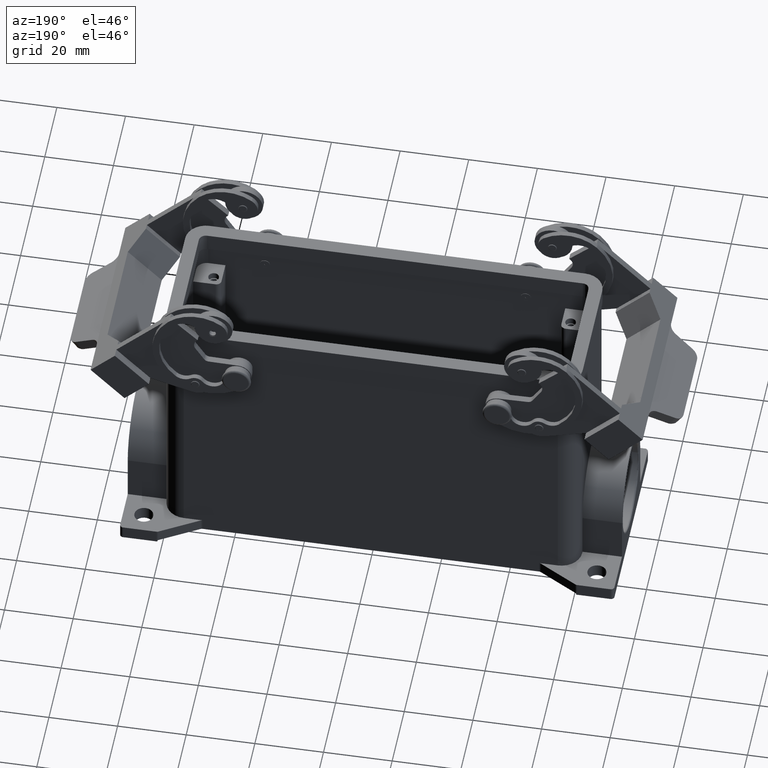
[diagram: clean part render]
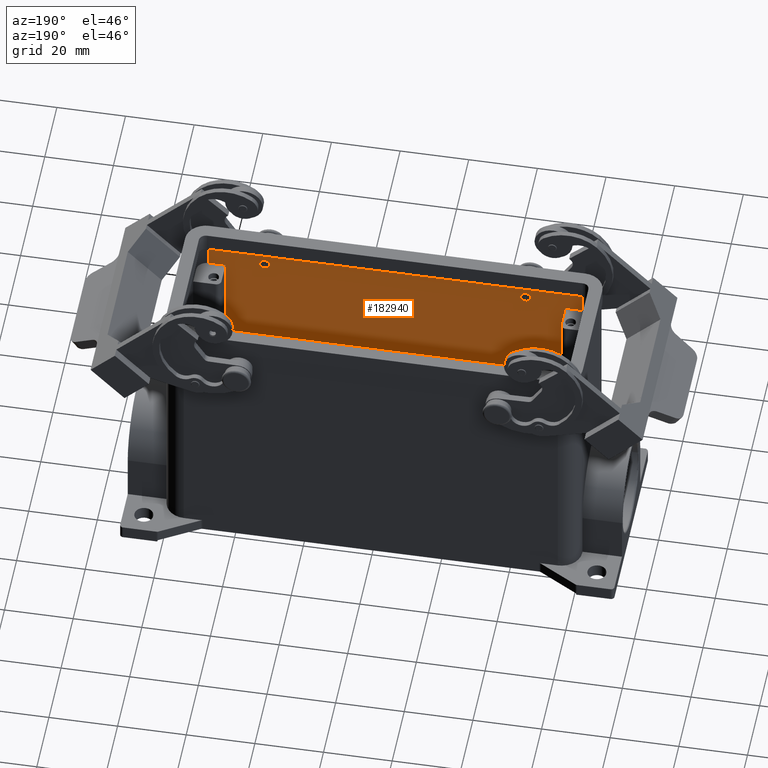
[diagram: same view with one face highlighted and labeled with its STEP entity id]
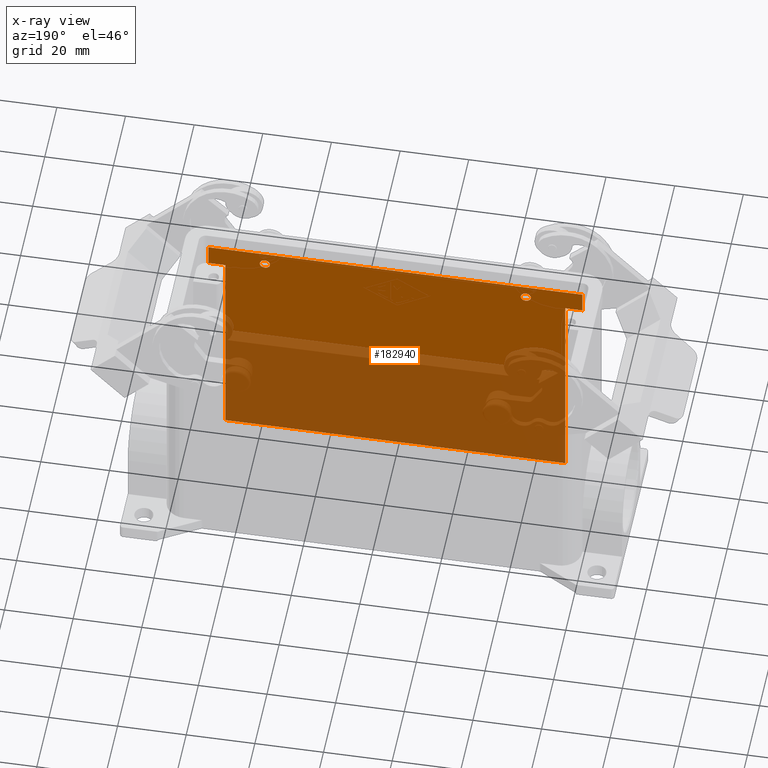
[diagram: x-ray of the same camera — body ghosted, the highlighted face saturated]
A machine part, auxiliary view. The second image highlights one B-rep face of the part: STEP entity #182940.
The next image is the same camera in x-ray: the body ghosted, the highlighted face saturated — about 55% of this face is hidden behind the body in this view.
In plain terms, the highlighted planar face has unit normal (0, -1, 0).
Its self-contained STEP definition (entity closure, byte-faithful):
#13080=CARTESIAN_POINT('',(-38.,-18.75,18.));
#13090=VERTEX_POINT('',#13080);
#13120=CARTESIAN_POINT('',(-38.,-18.75,19.5));
#13130=DIRECTION('',(0.,-1.,0.));
#13140=DIRECTION('',(0.,0.,1.));
#13150=AXIS2_PLACEMENT_3D('',#13120,#13130,#13140);
#13160=CIRCLE('',#13150,1.5);
#13170=CARTESIAN_POINT('',(-38.,-18.75,21.));
#13180=VERTEX_POINT('',#13170);
#13190=EDGE_CURVE('',#13090,#13180,#13160,.T.);
#21970=CARTESIAN_POINT('',(36.5,-18.75,19.5));
#21980=VERTEX_POINT('',#21970);
#22010=CARTESIAN_POINT('',(38.,-18.75,19.5));
#22020=DIRECTION('',(0.,-1.,0.));
#22030=DIRECTION('',(0.,0.,1.));
#22040=AXIS2_PLACEMENT_3D('',#22010,#22020,#22030);
#22050=CIRCLE('',#22040,1.5);
#22060=CARTESIAN_POINT('',(39.5,-18.75,19.5));
#22070=VERTEX_POINT('',#22060);
#22080=EDGE_CURVE('',#21980,#22070,#22050,.T.);
#80500=CARTESIAN_POINT('',(-49.5,-18.75,-47.));
#80510=VERTEX_POINT('',#80500);
#80680=CARTESIAN_POINT('',(49.5,-18.75,-47.));
#80690=VERTEX_POINT('',#80680);
#80720=CARTESIAN_POINT('',(-49.5,-18.75,-47.));
#80730=DIRECTION('',(1.,0.,0.));
#80740=VECTOR('',#80730,99.);
#80750=LINE('',#80720,#80740);
#80760=EDGE_CURVE('',#80510,#80690,#80750,.T.);
#180000=CARTESIAN_POINT('',(49.5,-18.75,17.));
#180010=VERTEX_POINT('',#180000);
#180040=CARTESIAN_POINT('',(49.5,-18.75,17.));
#180050=DIRECTION('',(0.,0.,-1.));
#180060=VECTOR('',#180050,64.);
#180070=LINE('',#180040,#180060);
#180080=EDGE_CURVE('',#180010,#80690,#180070,.T.);
#180720=CARTESIAN_POINT('',(54.5,-18.75,17.));
#180730=VERTEX_POINT('',#180720);
#180760=CARTESIAN_POINT('',(54.5,-18.75,17.));
#180770=DIRECTION('',(-1.,0.,0.));
#180780=VECTOR('',#180770,5.);
#180790=LINE('',#180760,#180780);
#180800=EDGE_CURVE('',#180730,#180010,#180790,.T.);
#181720=CARTESIAN_POINT('',(-49.5,-18.75,-47.));
#181730=DIRECTION('',(0.,0.,1.));
#181740=VECTOR('',#181730,64.);
#181750=LINE('',#181720,#181740);
#181760=CARTESIAN_POINT('',(-49.5,-18.75,17.));
#181770=VERTEX_POINT('',#181760);
#181780=EDGE_CURVE('',#80510,#181770,#181750,.T.);
#182210=CARTESIAN_POINT('',(-49.5,-18.75,17.));
#182220=DIRECTION('',(-1.,0.,0.));
#182230=VECTOR('',#182220,5.);
#182240=LINE('',#182210,#182230);
#182250=CARTESIAN_POINT('',(-54.5,-18.75,17.));
#182260=VERTEX_POINT('',#182250);
#182270=EDGE_CURVE('',#181770,#182260,#182240,.T.);
#182460=CARTESIAN_POINT('',(54.5,-18.75,1.5));
#182470=DIRECTION('',(0.,-1.,0.));
#182480=DIRECTION('',(0.,0.,-1.));
#182490=AXIS2_PLACEMENT_3D('',#182460,#182470,#182480);
#182500=PLANE('',#182490);
#182510=ORIENTED_EDGE('',*,*,#180800,.T.);
#182520=CARTESIAN_POINT('',(54.5,-18.75,17.));
#182530=DIRECTION('',(0.,0.,1.));
#182540=VECTOR('',#182530,6.5);
#182550=LINE('',#182520,#182540);
#182560=CARTESIAN_POINT('',(54.5,-18.75,23.5));
#182570=VERTEX_POINT('',#182560);
#182580=EDGE_CURVE('',#180730,#182570,#182550,.T.);
#182590=ORIENTED_EDGE('',*,*,#182580,.F.);
#182600=CARTESIAN_POINT('',(54.5,-18.75,23.5));
#182610=DIRECTION('',(-1.,0.,0.));
#182620=VECTOR('',#182610,109.);
#182630=LINE('',#182600,#182620);
#182640=CARTESIAN_POINT('',(-54.5,-18.75,23.5));
#182650=VERTEX_POINT('',#182640);
#182660=EDGE_CURVE('',#182570,#182650,#182630,.T.);
#182670=ORIENTED_EDGE('',*,*,#182660,.F.);
#182680=CARTESIAN_POINT('',(-54.5,-18.75,17.));
#182690=DIRECTION('',(0.,0.,1.));
#182700=VECTOR('',#182690,6.5);
#182710=LINE('',#182680,#182700);
#182720=EDGE_CURVE('',#182260,#182650,#182710,.T.);
#182730=ORIENTED_EDGE('',*,*,#182720,.T.);
#182740=ORIENTED_EDGE('',*,*,#182270,.T.);
#182750=ORIENTED_EDGE('',*,*,#181780,.T.);
#182760=ORIENTED_EDGE('',*,*,#80760,.F.);
#182770=ORIENTED_EDGE('',*,*,#180080,.T.);
#182780=EDGE_LOOP('',(#182770,#182760,#182750,#182740,#182730,#182670,
#182590,#182510));
#182790=FACE_OUTER_BOUND('',#182780,.T.);
#182800=EDGE_CURVE('',#13180,#13090,#13160,.T.);
#182810=ORIENTED_EDGE('',*,*,#182800,.T.);
#182820=ORIENTED_EDGE('',*,*,#13190,.T.);
#182830=EDGE_LOOP('',(#182820,#182810));
#182840=FACE_BOUND('',#182830,.T.);
#182850=ORIENTED_EDGE('',*,*,#22080,.T.);
#182860=CARTESIAN_POINT('',(38.,-18.75,21.));
#182870=VERTEX_POINT('',#182860);
#182880=EDGE_CURVE('',#182870,#21980,#22050,.T.);
#182890=ORIENTED_EDGE('',*,*,#182880,.T.);
#182900=EDGE_CURVE('',#22070,#182870,#22050,.T.);
#182910=ORIENTED_EDGE('',*,*,#182900,.T.);
#182920=EDGE_LOOP('',(#182910,#182890,#182850));
#182930=FACE_BOUND('',#182920,.T.);
#182940=ADVANCED_FACE('',(#182790,#182840,#182930),#182500,.F.);